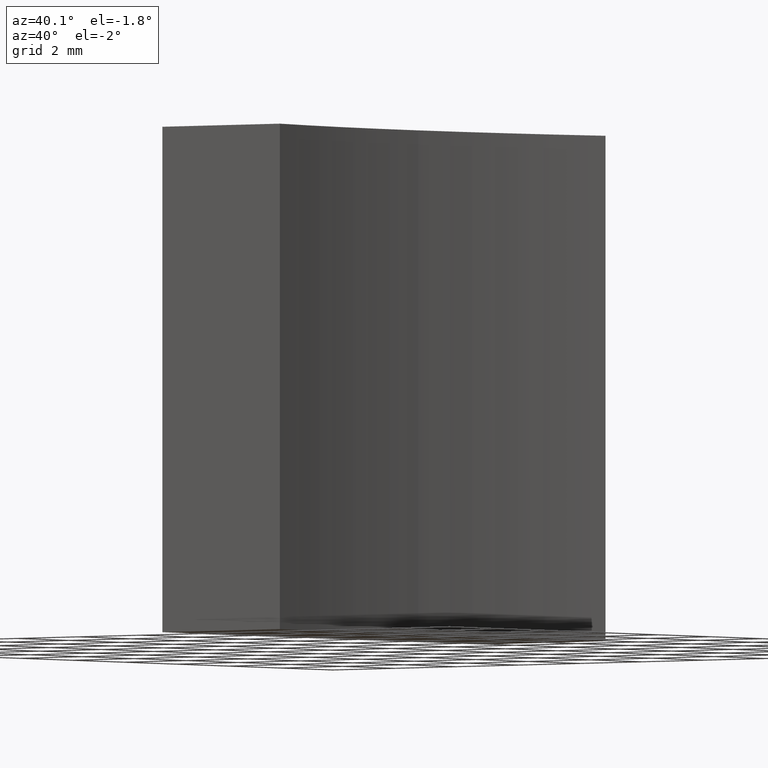
[diagram: clean part render]
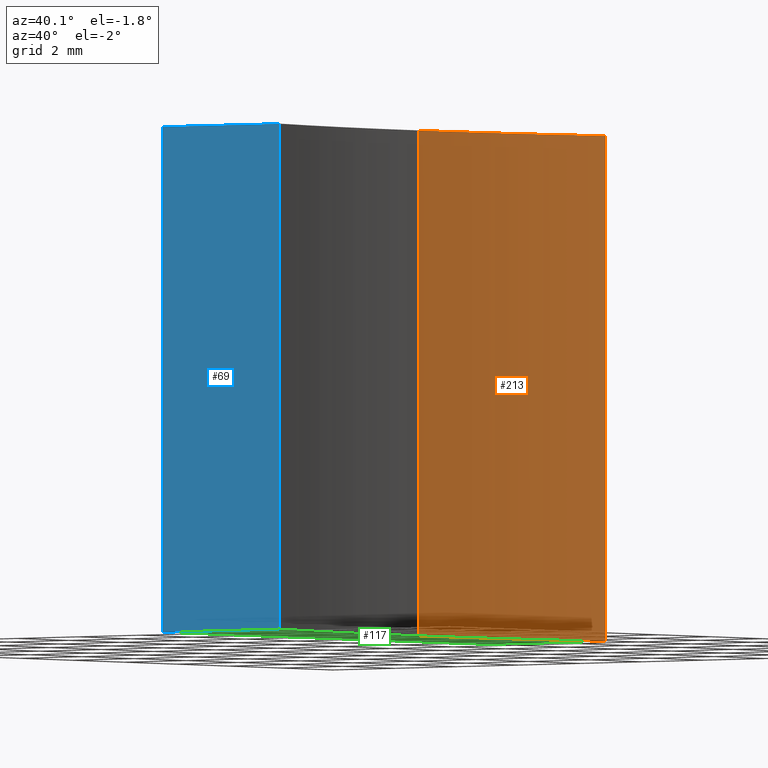
[diagram: same view with three faces highlighted in distinct colors, each labeled with its STEP entity id]
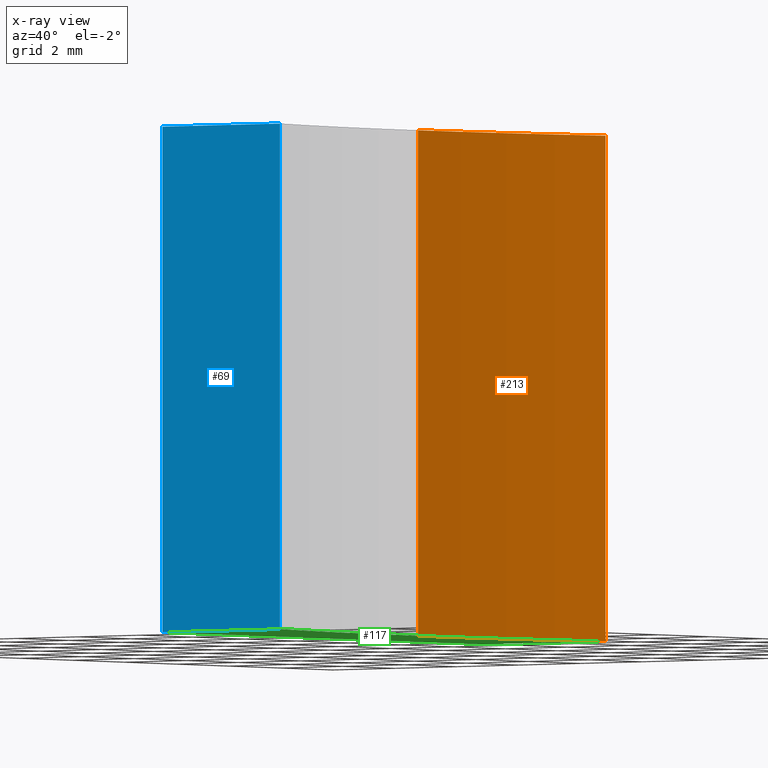
[diagram: x-ray of the same camera — body ghosted, the three highlighted faces saturated]
A machine part, auxiliary view with three faces highlighted in distinct colors.
The next image is the same camera in x-ray (body ghosted, the three faces saturated) — at least one of them is partly hidden behind the body in this view.
Their STEP definitions:

[orange] entity #213 — the highlighted cylindrical surface (partial cylindrical patch) has radius 25 mm, axis along (-0, -0, -1).
#1 = VERTEX_POINT ( 'NONE', #205 ) ;
#4 = AXIS2_PLACEMENT_3D ( 'NONE', #96, #100, #116 ) ;
#23 = EDGE_LOOP ( 'NONE', ( #99, #157, #201, #236 ) ) ;
#27 = AXIS2_PLACEMENT_3D ( 'NONE', #75, #118, #200 ) ;
#35 = LINE ( 'NONE', #110, #134 ) ;
#45 = VERTEX_POINT ( 'NONE', #64 ) ;
#60 = VERTEX_POINT ( 'NONE', #66 ) ;
#64 = CARTESIAN_POINT ( 'NONE',  ( 146.1474219018447200, 39.67896463388353800, 12.50000000000000000 ) ) ;
#66 = CARTESIAN_POINT ( 'NONE',  ( 145.3535678156410700, 33.42896463388354500, 0.0000000000000000000 ) ) ;
#75 = CARTESIAN_POINT ( 'NONE',  ( 170.3535678156410400, 33.42896463388354500, 12.50000000000000000 ) ) ;
#77 = EDGE_CURVE ( 'NONE', #1, #60, #101, .T. ) ;
#86 = CARTESIAN_POINT ( 'NONE',  ( 145.3535678156410700, 33.42896463388354500, 12.50000000000000000 ) ) ;
#89 = CIRCLE ( 'NONE', #4, 24.99999999999996800 ) ;
#92 = DIRECTION ( 'NONE',  ( -0.0000000000000000000, -0.0000000000000000000, -1.000000000000000000 ) ) ;
#93 = DIRECTION ( 'NONE',  ( -0.0000000000000000000, -0.0000000000000000000, -1.000000000000000000 ) ) ;
#96 = CARTESIAN_POINT ( 'NONE',  ( 170.3535678156410400, 33.42896463388354500, 0.0000000000000000000 ) ) ;
#99 = ORIENTED_EDGE ( 'NONE', *, *, #163, .F. ) ;
#100 = DIRECTION ( 'NONE',  ( -0.0000000000000000000, -0.0000000000000000000, -1.000000000000000000 ) ) ;
#101 = LINE ( 'NONE', #86, #232 ) ;
#110 = CARTESIAN_POINT ( 'NONE',  ( 146.1474219018447200, 39.67896463388353800, 12.50000000000000000 ) ) ;
#111 = CARTESIAN_POINT ( 'NONE',  ( 146.1474219018447200, 39.67896463388353800, 0.0000000000000000000 ) ) ;
#116 = DIRECTION ( 'NONE',  ( 1.000000000000000000, 0.0000000000000000000, 0.0000000000000000000 ) ) ;
#118 = DIRECTION ( 'NONE',  ( -0.0000000000000000000, -0.0000000000000000000, -1.000000000000000000 ) ) ;
#119 = EDGE_CURVE ( 'NONE', #45, #131, #35, .T. ) ;
#131 = VERTEX_POINT ( 'NONE', #111 ) ;
#134 = VECTOR ( 'NONE', #92, 1000.000000000000000 ) ;
#139 = FACE_OUTER_BOUND ( 'NONE', #23, .T. ) ;
#147 = DIRECTION ( 'NONE',  ( -0.0000000000000000000, -0.0000000000000000000, -1.000000000000000000 ) ) ;
#151 = DIRECTION ( 'NONE',  ( 1.000000000000000000, 0.0000000000000000000, 0.0000000000000000000 ) ) ;
#157 = ORIENTED_EDGE ( 'NONE', *, *, #77, .T. ) ;
#163 = EDGE_CURVE ( 'NONE', #1, #45, #226, .T. ) ;
#200 = DIRECTION ( 'NONE',  ( -1.000000000000000000, 0.0000000000000000000, 0.0000000000000000000 ) ) ;
#201 = ORIENTED_EDGE ( 'NONE', *, *, #234, .T. ) ;
#205 = CARTESIAN_POINT ( 'NONE',  ( 145.3535678156410700, 33.42896463388354500, 12.50000000000000000 ) ) ;
#206 = CYLINDRICAL_SURFACE ( 'NONE', #27, 24.99999999999996800 ) ;
#213 = ADVANCED_FACE ( 'NONE', ( #139 ), #206, .F. ) ;
#217 = AXIS2_PLACEMENT_3D ( 'NONE', #235, #93, #151 ) ;
#226 = CIRCLE ( 'NONE', #217, 24.99999999999996800 ) ;
#232 = VECTOR ( 'NONE', #147, 1000.000000000000000 ) ;
#234 = EDGE_CURVE ( 'NONE', #60, #131, #89, .T. ) ;
#235 = CARTESIAN_POINT ( 'NONE',  ( 170.3535678156410400, 33.42896463388354500, 12.50000000000000000 ) ) ;
#236 = ORIENTED_EDGE ( 'NONE', *, *, #119, .F. ) ;

[blue] entity #69 — the highlighted planar face has unit normal (-0, 1, 0).
#5 = EDGE_CURVE ( 'NONE', #148, #63, #108, .T. ) ;
#7 = CARTESIAN_POINT ( 'NONE',  ( 146.1474219018447200, 27.17896463388354900, 12.50000000000000000 ) ) ;
#10 = CARTESIAN_POINT ( 'NONE',  ( 146.1474219018447200, 27.17896463388355200, 0.0000000000000000000 ) ) ;
#19 = LINE ( 'NONE', #182, #33 ) ;
#24 = PLANE ( 'NONE',  #126 ) ;
#33 = VECTOR ( 'NONE', #229, 1000.000000000000000 ) ;
#36 = VERTEX_POINT ( 'NONE', #42 ) ;
#42 = CARTESIAN_POINT ( 'NONE',  ( 146.1474219018447200, 27.17896463388355200, 12.50000000000000000 ) ) ;
#49 = VECTOR ( 'NONE', #225, 1000.000000000000000 ) ;
#50 = EDGE_CURVE ( 'NONE', #36, #173, #212, .T. ) ;
#62 = EDGE_CURVE ( 'NONE', #148, #36, #202, .T. ) ;
#63 = VERTEX_POINT ( 'NONE', #228 ) ;
#68 = CARTESIAN_POINT ( 'NONE',  ( 142.3535678156410400, 27.17896463388353800, 12.50000000000000000 ) ) ;
#69 = ADVANCED_FACE ( 'NONE', ( #238 ), #24, .F. ) ;
#84 = DIRECTION ( 'NONE',  ( -0.0000000000000000000, -0.0000000000000000000, -1.000000000000000000 ) ) ;
#90 = DIRECTION ( 'NONE',  ( -2.743474213652739600E-015, 1.000000000000000000, 0.0000000000000000000 ) ) ;
#91 = EDGE_CURVE ( 'NONE', #63, #173, #19, .T. ) ;
#107 = CARTESIAN_POINT ( 'NONE',  ( 146.1474219018447200, 27.17896463388355200, 12.50000000000000000 ) ) ;
#108 = LINE ( 'NONE', #109, #49 ) ;
#109 = CARTESIAN_POINT ( 'NONE',  ( 142.3535678156410400, 27.17896463388353800, 12.50000000000000000 ) ) ;
#112 = CARTESIAN_POINT ( 'NONE',  ( 146.1474219018447200, 27.17896463388354900, 12.50000000000000000 ) ) ;
#115 = VECTOR ( 'NONE', #142, 1000.000000000000000 ) ;
#123 = ORIENTED_EDGE ( 'NONE', *, *, #5, .T. ) ;
#126 = AXIS2_PLACEMENT_3D ( 'NONE', #112, #90, #179 ) ;
#142 = DIRECTION ( 'NONE',  ( 1.000000000000000000, 2.743474213652739600E-015, -0.0000000000000000000 ) ) ;
#148 = VERTEX_POINT ( 'NONE', #68 ) ;
#173 = VERTEX_POINT ( 'NONE', #10 ) ;
#174 = EDGE_LOOP ( 'NONE', ( #207, #191, #211, #123 ) ) ;
#179 = DIRECTION ( 'NONE',  ( -1.000000000000000000, -2.743474213652739600E-015, 0.0000000000000000000 ) ) ;
#182 = CARTESIAN_POINT ( 'NONE',  ( 146.1474219018447200, 27.17896463388354900, 0.0000000000000000000 ) ) ;
#191 = ORIENTED_EDGE ( 'NONE', *, *, #50, .F. ) ;
#193 = VECTOR ( 'NONE', #84, 1000.000000000000000 ) ;
#202 = LINE ( 'NONE', #7, #115 ) ;
#207 = ORIENTED_EDGE ( 'NONE', *, *, #91, .T. ) ;
#211 = ORIENTED_EDGE ( 'NONE', *, *, #62, .F. ) ;
#212 = LINE ( 'NONE', #107, #193 ) ;
#225 = DIRECTION ( 'NONE',  ( -0.0000000000000000000, -0.0000000000000000000, -1.000000000000000000 ) ) ;
#228 = CARTESIAN_POINT ( 'NONE',  ( 142.3535678156410400, 27.17896463388353800, 0.0000000000000000000 ) ) ;
#229 = DIRECTION ( 'NONE',  ( 1.000000000000000000, 2.743474213652739600E-015, -0.0000000000000000000 ) ) ;
#238 = FACE_OUTER_BOUND ( 'NONE', #174, .T. ) ;

[green] entity #117 — the highlighted planar face has unit normal (0, 0, 1).
#4 = AXIS2_PLACEMENT_3D ( 'NONE', #96, #100, #116 ) ;
#6 = ORIENTED_EDGE ( 'NONE', *, *, #234, .F. ) ;
#10 = CARTESIAN_POINT ( 'NONE',  ( 146.1474219018447200, 27.17896463388355200, 0.0000000000000000000 ) ) ;
#19 = LINE ( 'NONE', #182, #33 ) ;
#22 = EDGE_CURVE ( 'NONE', #131, #127, #37, .T. ) ;
#25 = VECTOR ( 'NONE', #167, 1000.000000000000000 ) ;
#33 = VECTOR ( 'NONE', #229, 1000.000000000000000 ) ;
#37 = LINE ( 'NONE', #125, #124 ) ;
#56 = LINE ( 'NONE', #67, #25 ) ;
#60 = VERTEX_POINT ( 'NONE', #66 ) ;
#63 = VERTEX_POINT ( 'NONE', #228 ) ;
#66 = CARTESIAN_POINT ( 'NONE',  ( 145.3535678156410700, 33.42896463388354500, 0.0000000000000000000 ) ) ;
#67 = CARTESIAN_POINT ( 'NONE',  ( 142.3535678156410400, 33.42896463388353800, 0.0000000000000000000 ) ) ;
#70 = CIRCLE ( 'NONE', #132, 24.99999999999996800 ) ;
#71 = AXIS2_PLACEMENT_3D ( 'NONE', #192, #178, #210 ) ;
#73 = ORIENTED_EDGE ( 'NONE', *, *, #81, .F. ) ;
#81 = EDGE_CURVE ( 'NONE', #173, #60, #70, .T. ) ;
#83 = ORIENTED_EDGE ( 'NONE', *, *, #169, .F. ) ;
#89 = CIRCLE ( 'NONE', #4, 24.99999999999996800 ) ;
#91 = EDGE_CURVE ( 'NONE', #63, #173, #19, .T. ) ;
#96 = CARTESIAN_POINT ( 'NONE',  ( 170.3535678156410400, 33.42896463388354500, 0.0000000000000000000 ) ) ;
#100 = DIRECTION ( 'NONE',  ( -0.0000000000000000000, -0.0000000000000000000, -1.000000000000000000 ) ) ;
#111 = CARTESIAN_POINT ( 'NONE',  ( 146.1474219018447200, 39.67896463388353800, 0.0000000000000000000 ) ) ;
#116 = DIRECTION ( 'NONE',  ( 1.000000000000000000, 0.0000000000000000000, 0.0000000000000000000 ) ) ;
#117 = ADVANCED_FACE ( 'NONE', ( #160 ), #166, .F. ) ;
#120 = EDGE_LOOP ( 'NONE', ( #220, #83, #140, #6, #73 ) ) ;
#124 = VECTOR ( 'NONE', #128, 1000.000000000000000 ) ;
#125 = CARTESIAN_POINT ( 'NONE',  ( 142.3535678156410400, 39.67896463388353800, 0.0000000000000000000 ) ) ;
#127 = VERTEX_POINT ( 'NONE', #165 ) ;
#128 = DIRECTION ( 'NONE',  ( -1.000000000000000000, -0.0000000000000000000, -0.0000000000000000000 ) ) ;
#130 = DIRECTION ( 'NONE',  ( -0.0000000000000000000, -0.0000000000000000000, -1.000000000000000000 ) ) ;
#131 = VERTEX_POINT ( 'NONE', #111 ) ;
#132 = AXIS2_PLACEMENT_3D ( 'NONE', #194, #130, #233 ) ;
#140 = ORIENTED_EDGE ( 'NONE', *, *, #22, .F. ) ;
#160 = FACE_OUTER_BOUND ( 'NONE', #120, .T. ) ;
#165 = CARTESIAN_POINT ( 'NONE',  ( 142.3535678156410400, 39.67896463388353800, 0.0000000000000000000 ) ) ;
#166 = PLANE ( 'NONE',  #71 ) ;
#167 = DIRECTION ( 'NONE',  ( -0.0000000000000000000, -1.000000000000000000, -0.0000000000000000000 ) ) ;
#169 = EDGE_CURVE ( 'NONE', #127, #63, #56, .T. ) ;
#173 = VERTEX_POINT ( 'NONE', #10 ) ;
#178 = DIRECTION ( 'NONE',  ( 0.0000000000000000000, 0.0000000000000000000, 1.000000000000000000 ) ) ;
#182 = CARTESIAN_POINT ( 'NONE',  ( 146.1474219018447200, 27.17896463388354900, 0.0000000000000000000 ) ) ;
#192 = CARTESIAN_POINT ( 'NONE',  ( 170.3535678156410400, 33.42896463388354500, 0.0000000000000000000 ) ) ;
#194 = CARTESIAN_POINT ( 'NONE',  ( 170.3535678156410400, 33.42896463388354500, 0.0000000000000000000 ) ) ;
#210 = DIRECTION ( 'NONE',  ( 1.000000000000000000, 0.0000000000000000000, -0.0000000000000000000 ) ) ;
#220 = ORIENTED_EDGE ( 'NONE', *, *, #91, .F. ) ;
#228 = CARTESIAN_POINT ( 'NONE',  ( 142.3535678156410400, 27.17896463388353800, 0.0000000000000000000 ) ) ;
#229 = DIRECTION ( 'NONE',  ( 1.000000000000000000, 2.743474213652739600E-015, -0.0000000000000000000 ) ) ;
#233 = DIRECTION ( 'NONE',  ( 1.000000000000000000, 0.0000000000000000000, 0.0000000000000000000 ) ) ;
#234 = EDGE_CURVE ( 'NONE', #60, #131, #89, .T. ) ;